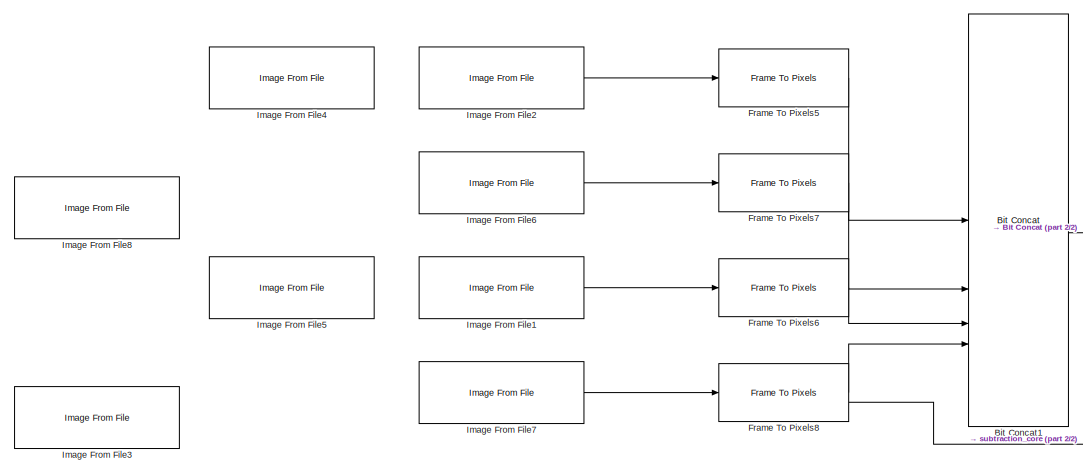
[diagram: root canvas - part 1/2, left side, full height]
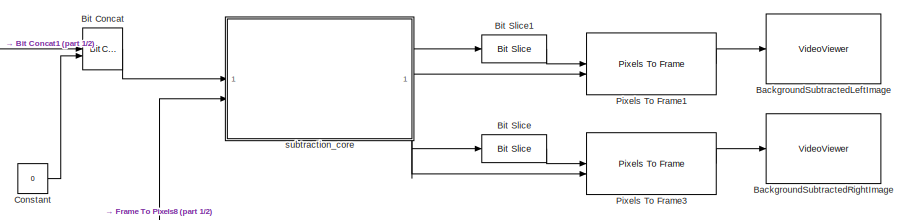
[diagram: root canvas - part 2/2, middle right region]
MODEL slx_2dde3728fc6b
KIND model
CONFIG AbsTol = auto
CONFIG EnableMultiTasking = off
CONFIG FixedStep = auto
CONFIG MaxStep = auto
CONFIG MinStep = auto
CONFIG RelTol = 1e-3
CONFIG SampleTimeConstraint = Unconstrained
CONFIG SolverName = FixedStepDiscrete
CONFIG StartTime = 0.0
CONFIG StopTime = 2
BLOCK [VideoViewer] BackgroundSubtractedLeftImage
  FigPos = [37 919 863 515]
  ScopeSpecificationString = vipscopes.VideoViewerScopeCfg('CurrentConfiguration', extmgr.ConfigurationSet(extmgr.Configuration('Core','General UI',true),extmgr.Configuration('Core','Source UI',true),extmgr.Configuration('Sources','WiredSimulink',true),extmgr.Configuration('Sources','Simulink',false),extmgr.Configuration('Sources','Workspace',false),extmgr.Configuration('Sources','File',false),extmgr.Configuration('Sources','...<+582ch>
  colormapValue = gray(256)
BLOCK [VideoViewer] BackgroundSubtractedRightImage
  FigPos = [913 939 854 533]
  ScopeSpecificationString = vipscopes.VideoViewerScopeCfg('CurrentConfiguration', extmgr.ConfigurationSet(extmgr.Configuration('Core','General UI',true),extmgr.Configuration('Core','Source UI',true),extmgr.Configuration('Sources','WiredSimulink',true),extmgr.Configuration('Sources','Simulink',false),extmgr.Configuration('Sources','Workspace',false),extmgr.Configuration('Sources','File',false),extmgr.Configuration('Sources','...<+583ch>
  colormapValue = gray(256)
BLOCK [Reference] Bit Concat  REF=hdlsllib/Logic and Bit
Operations/Bit Concat
  SourceBlock = hdlsllib/Logic and Bit\nOperations/Bit Concat
  SourceType = Bit Concat
BLOCK [Reference] Bit Concat1  REF=hdlsllib/Logic and Bit
Operations/Bit Concat
  SourceBlock = hdlsllib/Logic and Bit\nOperations/Bit Concat
  SourceType = Bit Concat
BLOCK [Reference] Bit Slice  REF=hdlsllib/Logic and Bit
Operations/Bit Slice
  SourceBlock = hdlsllib/Logic and Bit\nOperations/Bit Slice
  SourceType = Bit Slice
BLOCK [Reference] Bit Slice1  REF=hdlsllib/Logic and Bit
Operations/Bit Slice
  SourceBlock = hdlsllib/Logic and Bit\nOperations/Bit Slice
  SourceType = Bit Slice
BLOCK [Constant] Constant
  OutDataTypeStr = uint32
  SampleTime = -1
  Value = 0
BLOCK [Reference] Frame To Pixels5  REF=visionhdlio/Frame To Pixels
  SourceBlock = visionhdlio/Frame To Pixels
  SourceType = Frame To Pixels
BLOCK [Reference] Frame To Pixels6  REF=visionhdlio/Frame To Pixels
  SourceBlock = visionhdlio/Frame To Pixels
  SourceType = Frame To Pixels
BLOCK [Reference] Frame To Pixels7  REF=visionhdlio/Frame To Pixels
  SourceBlock = visionhdlio/Frame To Pixels
  SourceType = Frame To Pixels
BLOCK [Reference] Frame To Pixels8  REF=visionhdlio/Frame To Pixels
  SourceBlock = visionhdlio/Frame To Pixels
  SourceType = Frame To Pixels
BLOCK [Reference] Image From File1  REF=visionsources/Image From File
  SourceBlock = visionsources/Image From File
  SourceType = Image From File
  Tag = vipblks_nd
BLOCK [Reference] Image From File2  REF=visionsources/Image From File
  SourceBlock = visionsources/Image From File
  SourceType = Image From File
  Tag = vipblks_nd
BLOCK [Reference] Image From File3  REF=visionsources/Image From File
  SourceBlock = visionsources/Image From File
  SourceType = Image From File
  Tag = vipblks_nd
BLOCK [Reference] Image From File4  REF=visionsources/Image From File
  SourceBlock = visionsources/Image From File
  SourceType = Image From File
  Tag = vipblks_nd
BLOCK [Reference] Image From File5  REF=visionsources/Image From File
  SourceBlock = visionsources/Image From File
  SourceType = Image From File
  Tag = vipblks_nd
BLOCK [Reference] Image From File6  REF=visionsources/Image From File
  SourceBlock = visionsources/Image From File
  SourceType = Image From File
  Tag = vipblks_nd
BLOCK [Reference] Image From File7  REF=visionsources/Image From File
  SourceBlock = visionsources/Image From File
  SourceType = Image From File
  Tag = vipblks_nd
BLOCK [Reference] Image From File8  REF=visionsources/Image From File
  SourceBlock = visionsources/Image From File
  SourceType = Image From File
  Tag = vipblks_nd
BLOCK [Reference] Pixels To Frame1  REF=visionhdlio/Pixels To Frame
  SourceBlock = visionhdlio/Pixels To Frame
  SourceType = Pixels To Frame
BLOCK [Reference] Pixels To Frame3  REF=visionhdlio/Pixels To Frame
  SourceBlock = visionhdlio/Pixels To Frame
  SourceType = Pixels To Frame
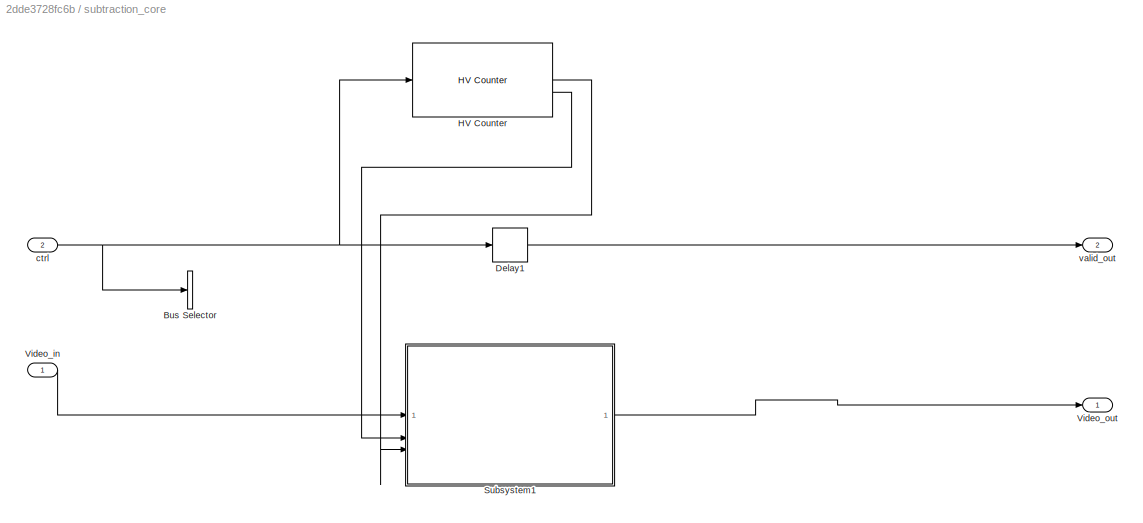
BLOCK [SubSystem] subtraction_core
  TreatAsAtomicUnit = on
BLOCK [BusSelector] subtraction_core/Bus Selector
  OutputSignals = valid
BLOCK [Delay] subtraction_core/Delay1
  InitialCondition = 0
  InputPortMap = u0
BLOCK [Reference] subtraction_core/HV Counter  REF=visionhdlutilities/HV Counter
  SourceBlock = visionhdlutilities/HV Counter
  SourceType = visionhdl.HVCounter
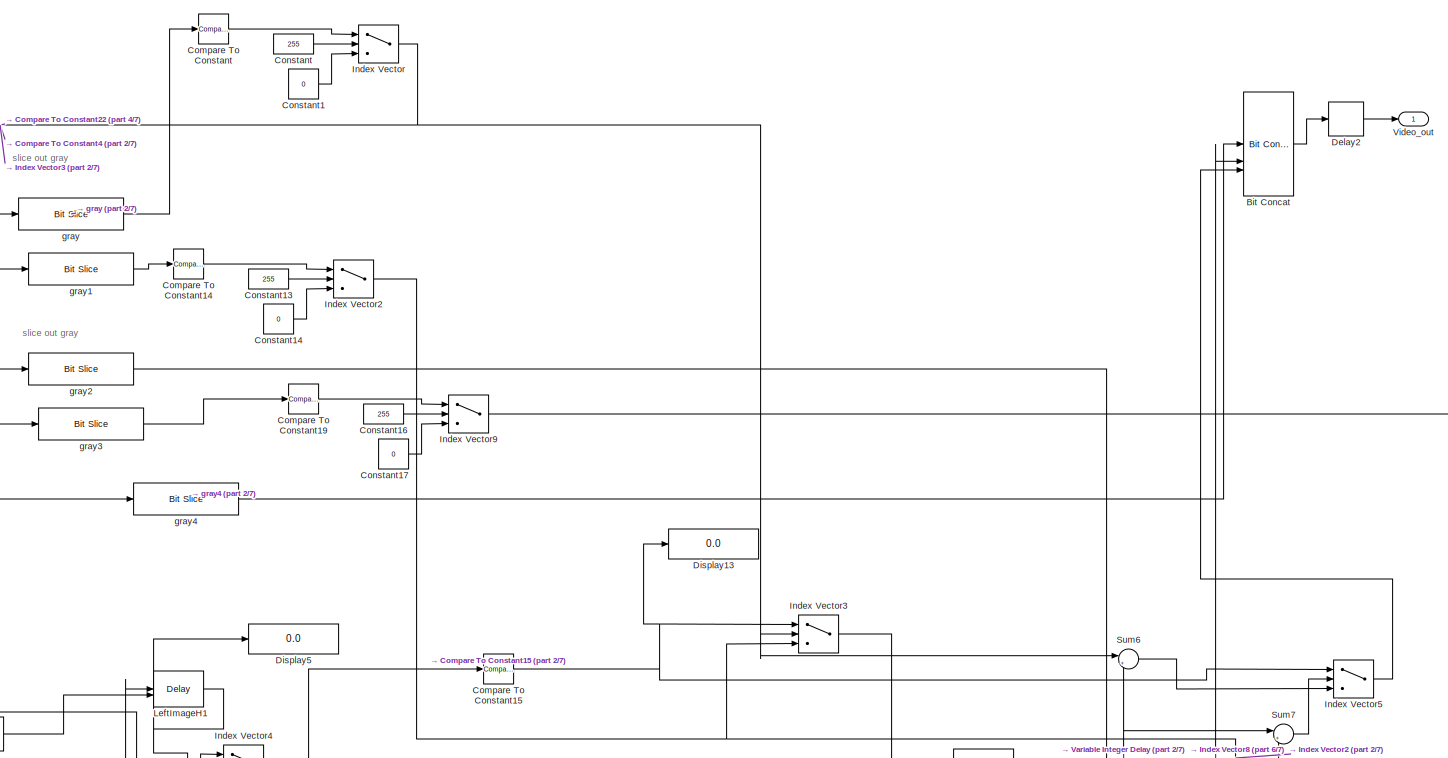
[diagram: subtraction_core/Subsystem1 - part 1/7, top center region]
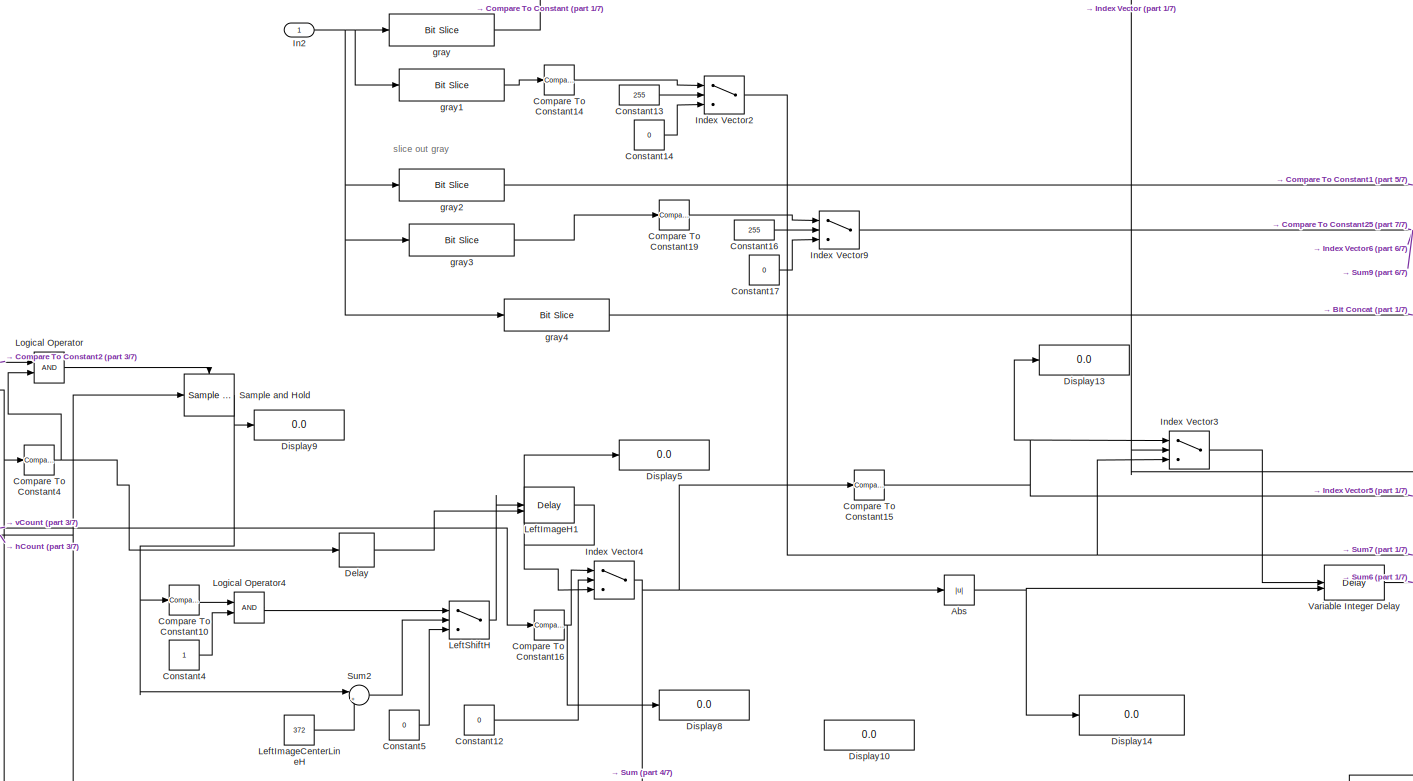
[diagram: subtraction_core/Subsystem1 - part 2/7, top left region]
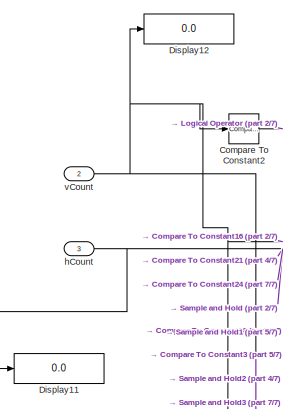
[diagram: subtraction_core/Subsystem1 - part 3/7, top left region]
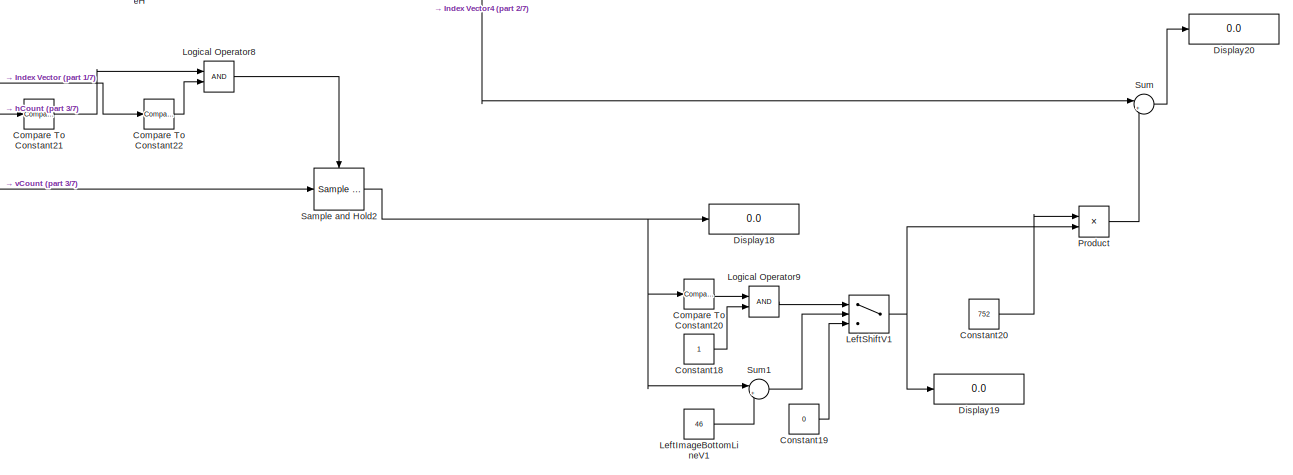
[diagram: subtraction_core/Subsystem1 - part 4/7, middle left region]
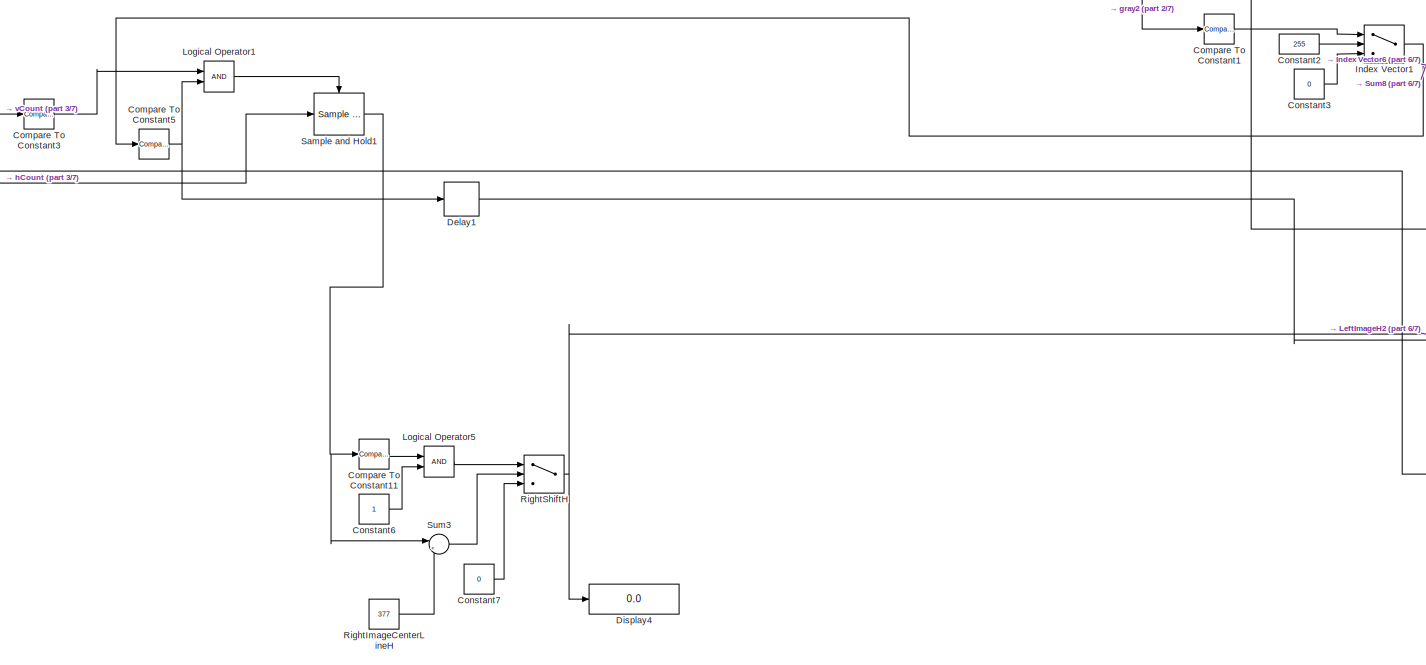
[diagram: subtraction_core/Subsystem1 - part 5/7, bottom center region]
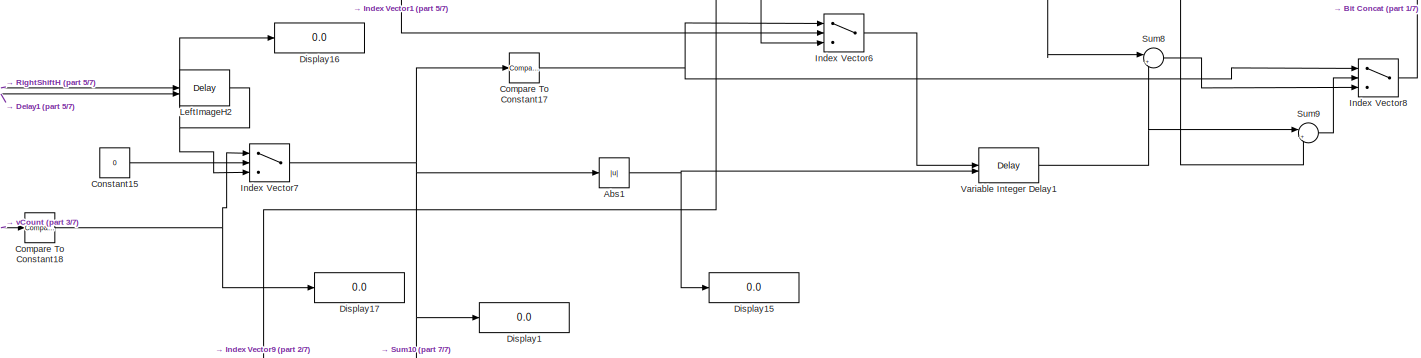
[diagram: subtraction_core/Subsystem1 - part 6/7, bottom right region]
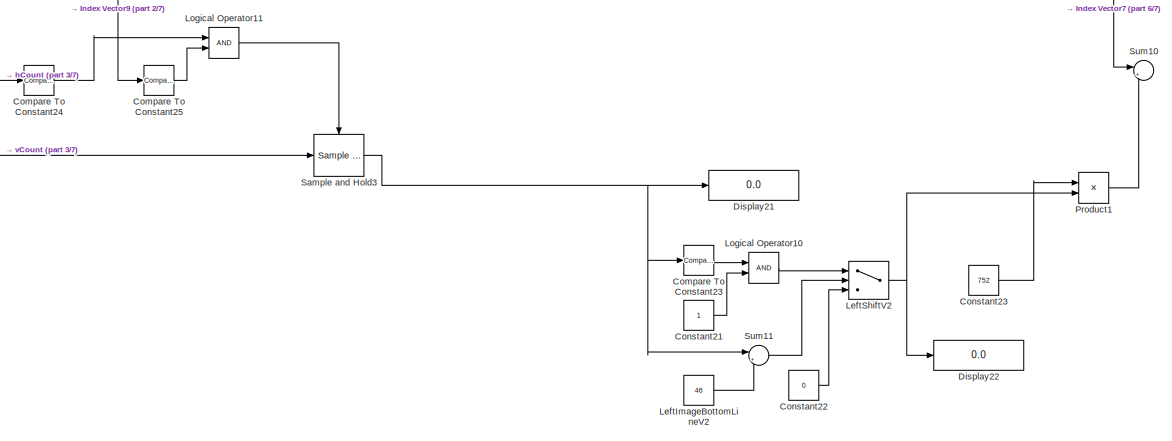
[diagram: subtraction_core/Subsystem1 - part 7/7, bottom right region]
BLOCK [SubSystem] subtraction_core/Subsystem1
BLOCK [Abs] subtraction_core/Subsystem1/Abs
  SaturateOnIntegerOverflow = off
BLOCK [Abs] subtraction_core/Subsystem1/Abs1
  SaturateOnIntegerOverflow = off
BLOCK [Reference] subtraction_core/Subsystem1/Bit Concat  REF=hdlsllib/Logic and Bit
Operations/Bit Concat
  SourceBlock = hdlsllib/Logic and Bit\nOperations/Bit Concat
  SourceType = Bit Concat
BLOCK [Reference] subtraction_core/Subsystem1/Compare To Constant  REF=simulink/Logic and Bit
Operations/Compare
To Constant
  SourceBlock = simulink/Logic and Bit\nOperations/Compare\nTo Constant
  SourceType = Compare To Constant
BLOCK [Reference] subtraction_core/Subsystem1/Compare To Constant1  REF=simulink/Logic and Bit
Operations/Compare
To Constant
  SourceBlock = simulink/Logic and Bit\nOperations/Compare\nTo Constant
  SourceType = Compare To Constant
BLOCK [Reference] subtraction_core/Subsystem1/Compare To Constant10  REF=simulink/Logic and Bit
Operations/Compare
To Constant
  SourceBlock = simulink/Logic and Bit\nOperations/Compare\nTo Constant
  SourceType = Compare To Constant
BLOCK [Reference] subtraction_core/Subsystem1/Compare To Constant11  REF=simulink/Logic and Bit
Operations/Compare
To Constant
  SourceBlock = simulink/Logic and Bit\nOperations/Compare\nTo Constant
  SourceType = Compare To Constant
BLOCK [Reference] subtraction_core/Subsystem1/Compare To Constant14  REF=simulink/Logic and Bit
Operations/Compare
To Constant
  SourceBlock = simulink/Logic and Bit\nOperations/Compare\nTo Constant
  SourceType = Compare To Constant
BLOCK [Reference] subtraction_core/Subsystem1/Compare To Constant15  REF=simulink/Logic and Bit
Operations/Compare
To Constant
  SourceBlock = simulink/Logic and Bit\nOperations/Compare\nTo Constant
  SourceType = Compare To Constant
BLOCK [Reference] subtraction_core/Subsystem1/Compare To Constant16  REF=simulink/Logic and Bit
Operations/Compare
To Constant
  SourceBlock = simulink/Logic and Bit\nOperations/Compare\nTo Constant
  SourceType = Compare To Constant
BLOCK [Reference] subtraction_core/Subsystem1/Compare To Constant17  REF=simulink/Logic and Bit
Operations/Compare
To Constant
  SourceBlock = simulink/Logic and Bit\nOperations/Compare\nTo Constant
  SourceType = Compare To Constant
BLOCK [Reference] subtraction_core/Subsystem1/Compare To Constant18  REF=simulink/Logic and Bit
Operations/Compare
To Constant
  SourceBlock = simulink/Logic and Bit\nOperations/Compare\nTo Constant
  SourceType = Compare To Constant
BLOCK [Reference] subtraction_core/Subsystem1/Compare To Constant19  REF=simulink/Logic and Bit
Operations/Compare
To Constant
  SourceBlock = simulink/Logic and Bit\nOperations/Compare\nTo Constant
  SourceType = Compare To Constant
BLOCK [Reference] subtraction_core/Subsystem1/Compare To Constant2  REF=simulink/Logic and Bit
Operations/Compare
To Constant
  SourceBlock = simulink/Logic and Bit\nOperations/Compare\nTo Constant
  SourceType = Compare To Constant
BLOCK [Reference] subtraction_core/Subsystem1/Compare To Constant20  REF=simulink/Logic and Bit
Operations/Compare
To Constant
  SourceBlock = simulink/Logic and Bit\nOperations/Compare\nTo Constant
  SourceType = Compare To Constant
BLOCK [Reference] subtraction_core/Subsystem1/Compare To Constant21  REF=simulink/Logic and Bit
Operations/Compare
To Constant
  SourceBlock = simulink/Logic and Bit\nOperations/Compare\nTo Constant
  SourceType = Compare To Constant
BLOCK [Reference] subtraction_core/Subsystem1/Compare To Constant22  REF=simulink/Logic and Bit
Operations/Compare
To Constant
  SourceBlock = simulink/Logic and Bit\nOperations/Compare\nTo Constant
  SourceType = Compare To Constant
BLOCK [Reference] subtraction_core/Subsystem1/Compare To Constant23  REF=simulink/Logic and Bit
Operations/Compare
To Constant
  SourceBlock = simulink/Logic and Bit\nOperations/Compare\nTo Constant
  SourceType = Compare To Constant
BLOCK [Reference] subtraction_core/Subsystem1/Compare To Constant24  REF=simulink/Logic and Bit
Operations/Compare
To Constant
  SourceBlock = simulink/Logic and Bit\nOperations/Compare\nTo Constant
  SourceType = Compare To Constant
BLOCK [Reference] subtraction_core/Subsystem1/Compare To Constant25  REF=simulink/Logic and Bit
Operations/Compare
To Constant
  SourceBlock = simulink/Logic and Bit\nOperations/Compare\nTo Constant
  SourceType = Compare To Constant
BLOCK [Reference] subtraction_core/Subsystem1/Compare To Constant3  REF=simulink/Logic and Bit
Operations/Compare
To Constant
  SourceBlock = simulink/Logic and Bit\nOperations/Compare\nTo Constant
  SourceType = Compare To Constant
BLOCK [Reference] subtraction_core/Subsystem1/Compare To Constant4  REF=simulink/Logic and Bit
Operations/Compare
To Constant
  SourceBlock = simulink/Logic and Bit\nOperations/Compare\nTo Constant
  SourceType = Compare To Constant
BLOCK [Reference] subtraction_core/Subsystem1/Compare To Constant5  REF=simulink/Logic and Bit
Operations/Compare
To Constant
  SourceBlock = simulink/Logic and Bit\nOperations/Compare\nTo Constant
  SourceType = Compare To Constant
BLOCK [Constant] subtraction_core/Subsystem1/Constant
  OutDataTypeStr = uint8
  Value = 255
BLOCK [Constant] subtraction_core/Subsystem1/Constant1
  OutDataTypeStr = int8
  Value = 0
BLOCK [Constant] subtraction_core/Subsystem1/Constant12
  OutDataTypeStr = int8
  Value = 0
BLOCK [Constant] subtraction_core/Subsystem1/Constant13
  OutDataTypeStr = uint8
  Value = 255
BLOCK [Constant] subtraction_core/Subsystem1/Constant14
  OutDataTypeStr = int8
  Value = 0
BLOCK [Constant] subtraction_core/Subsystem1/Constant15
  OutDataTypeStr = int8
  Value = 0
BLOCK [Constant] subtraction_core/Subsystem1/Constant16
  OutDataTypeStr = uint8
  Value = 255
BLOCK [Constant] subtraction_core/Subsystem1/Constant17
  OutDataTypeStr = int8
  Value = 0
BLOCK [Constant] subtraction_core/Subsystem1/Constant18
BLOCK [Constant] subtraction_core/Subsystem1/Constant19
  OutDataTypeStr = int8
  Value = 0
BLOCK [Constant] subtraction_core/Subsystem1/Constant2
  OutDataTypeStr = uint8
  Value = 255
BLOCK [Constant] subtraction_core/Subsystem1/Constant20
  Value = 752
BLOCK [Constant] subtraction_core/Subsystem1/Constant21
BLOCK [Constant] subtraction_core/Subsystem1/Constant22
  OutDataTypeStr = int8
  Value = 0
BLOCK [Constant] subtraction_core/Subsystem1/Constant23
  Value = 752
BLOCK [Constant] subtraction_core/Subsystem1/Constant3
  OutDataTypeStr = int8
  Value = 0
BLOCK [Constant] subtraction_core/Subsystem1/Constant4
BLOCK [Constant] subtraction_core/Subsystem1/Constant5
  OutDataTypeStr = int8
  Value = 0
BLOCK [Constant] subtraction_core/Subsystem1/Constant6
BLOCK [Constant] subtraction_core/Subsystem1/Constant7
  OutDataTypeStr = int8
  Value = 0
BLOCK [Delay] subtraction_core/Subsystem1/Delay
  DelayLength = 1
  InitialCondition = 0
  InputPortMap = u0
BLOCK [Delay] subtraction_core/Subsystem1/Delay1
  DelayLength = 1
  InitialCondition = 0
  InputPortMap = u0
BLOCK [Delay] subtraction_core/Subsystem1/Delay2
  InitialCondition = 0
  InputPortMap = u0
BLOCK [Display] subtraction_core/Subsystem1/Display1
  Decimation = 1
BLOCK [Display] subtraction_core/Subsystem1/Display10
  Decimation = 1
BLOCK [Display] subtraction_core/Subsystem1/Display11
  Decimation = 1
BLOCK [Display] subtraction_core/Subsystem1/Display12
  Decimation = 1
BLOCK [Display] subtraction_core/Subsystem1/Display13
  Decimation = 1
BLOCK [Display] subtraction_core/Subsystem1/Display14
  Decimation = 1
  Format = long
BLOCK [Display] subtraction_core/Subsystem1/Display15
  Decimation = 1
BLOCK [Display] subtraction_core/Subsystem1/Display16
  Decimation = 1
BLOCK [Display] subtraction_core/Subsystem1/Display17
  Decimation = 1
BLOCK [Display] subtraction_core/Subsystem1/Display18
  Decimation = 1
BLOCK [Display] subtraction_core/Subsystem1/Display19
  Decimation = 1
BLOCK [Display] subtraction_core/Subsystem1/Display20
  Decimation = 1
BLOCK [Display] subtraction_core/Subsystem1/Display21
  Decimation = 1
BLOCK [Display] subtraction_core/Subsystem1/Display22
  Decimation = 1
BLOCK [Display] subtraction_core/Subsystem1/Display4
  Decimation = 1
BLOCK [Display] subtraction_core/Subsystem1/Display5
  Decimation = 1
BLOCK [Display] subtraction_core/Subsystem1/Display8
  Decimation = 1
BLOCK [Display] subtraction_core/Subsystem1/Display9
  Decimation = 1
BLOCK [Inport] subtraction_core/Subsystem1/In2
BLOCK [MultiPortSwitch] subtraction_core/Subsystem1/Index Vector
  DataPortOrder = Zero-based contiguous
  InputSameDT = off
  Inputs = 2
  SaturateOnIntegerOverflow = off
  zeroidx = on
BLOCK [MultiPortSwitch] subtraction_core/Subsystem1/Index Vector1
  DataPortOrder = Zero-based contiguous
  InputSameDT = off
  Inputs = 2
  SaturateOnIntegerOverflow = off
  zeroidx = on
BLOCK [MultiPortSwitch] subtraction_core/Subsystem1/Index Vector2
  DataPortOrder = Zero-based contiguous
  InputSameDT = off
  Inputs = 2
  SaturateOnIntegerOverflow = off
  zeroidx = on
BLOCK [MultiPortSwitch] subtraction_core/Subsystem1/Index Vector3
  DataPortOrder = Zero-based contiguous
  InputSameDT = off
  Inputs = 2
  SaturateOnIntegerOverflow = off
  zeroidx = on
BLOCK [MultiPortSwitch] subtraction_core/Subsystem1/Index Vector4
  DataPortOrder = Zero-based contiguous
  InputSameDT = off
  Inputs = 2
  SaturateOnIntegerOverflow = off
  zeroidx = on
BLOCK [MultiPortSwitch] subtraction_core/Subsystem1/Index Vector5
  DataPortOrder = Zero-based contiguous
  InputSameDT = off
  Inputs = 2
  SaturateOnIntegerOverflow = off
  zeroidx = on
BLOCK [MultiPortSwitch] subtraction_core/Subsystem1/Index Vector6
  DataPortOrder = Zero-based contiguous
  InputSameDT = off
  Inputs = 2
  SaturateOnIntegerOverflow = off
  zeroidx = on
BLOCK [MultiPortSwitch] subtraction_core/Subsystem1/Index Vector7
  DataPortOrder = Zero-based contiguous
  InputSameDT = off
  Inputs = 2
  SaturateOnIntegerOverflow = off
  zeroidx = on
BLOCK [MultiPortSwitch] subtraction_core/Subsystem1/Index Vector8
  DataPortOrder = Zero-based contiguous
  InputSameDT = off
  Inputs = 2
  SaturateOnIntegerOverflow = off
  zeroidx = on
BLOCK [MultiPortSwitch] subtraction_core/Subsystem1/Index Vector9
  DataPortOrder = Zero-based contiguous
  InputSameDT = off
  Inputs = 2
  SaturateOnIntegerOverflow = off
  zeroidx = on
BLOCK [Constant] subtraction_core/Subsystem1/LeftImageBottomLineV1
  Value = 46
BLOCK [Constant] subtraction_core/Subsystem1/LeftImageBottomLineV2
  Value = 46
BLOCK [Constant] subtraction_core/Subsystem1/LeftImageCenterLineH
  Value = 372
BLOCK [Delay] subtraction_core/Subsystem1/LeftImageH1
  DelayLength = 1
  InputPortMap = u0,e6
  ShowEnablePort = on
BLOCK [Delay] subtraction_core/Subsystem1/LeftImageH2
  DelayLength = 1
  InputPortMap = u0,e6
  ShowEnablePort = on
BLOCK [MultiPortSwitch] subtraction_core/Subsystem1/LeftShiftH
  DataPortOrder = Zero-based contiguous
  InputSameDT = off
  Inputs = 2
  SaturateOnIntegerOverflow = off
  zeroidx = on
BLOCK [MultiPortSwitch] subtraction_core/Subsystem1/LeftShiftV1
  DataPortOrder = Zero-based contiguous
  InputSameDT = off
  Inputs = 2
  SaturateOnIntegerOverflow = off
  zeroidx = on
BLOCK [MultiPortSwitch] subtraction_core/Subsystem1/LeftShiftV2
  DataPortOrder = Zero-based contiguous
  InputSameDT = off
  Inputs = 2
  SaturateOnIntegerOverflow = off
  zeroidx = on
BLOCK [Logic] subtraction_core/Subsystem1/Logical Operator
  AllPortsSameDT = off
  OutDataTypeStr = boolean
BLOCK [Logic] subtraction_core/Subsystem1/Logical Operator1
  AllPortsSameDT = off
  OutDataTypeStr = boolean
BLOCK [Logic] subtraction_core/Subsystem1/Logical Operator10
  AllPortsSameDT = off
  OutDataTypeStr = boolean
BLOCK [Logic] subtraction_core/Subsystem1/Logical Operator11
  AllPortsSameDT = off
  OutDataTypeStr = boolean
BLOCK [Logic] subtraction_core/Subsystem1/Logical Operator4
  AllPortsSameDT = off
  OutDataTypeStr = boolean
BLOCK [Logic] subtraction_core/Subsystem1/Logical Operator5
  AllPortsSameDT = off
  OutDataTypeStr = boolean
BLOCK [Logic] subtraction_core/Subsystem1/Logical Operator8
  AllPortsSameDT = off
  OutDataTypeStr = boolean
BLOCK [Logic] subtraction_core/Subsystem1/Logical Operator9
  AllPortsSameDT = off
  OutDataTypeStr = boolean
BLOCK [Product] subtraction_core/Subsystem1/Product
BLOCK [Product] subtraction_core/Subsystem1/Product1
BLOCK [Constant] subtraction_core/Subsystem1/RightImageCenterLineH
  Value = 377
BLOCK [MultiPortSwitch] subtraction_core/Subsystem1/RightShiftH
  DataPortOrder = Zero-based contiguous
  InputSameDT = off
  Inputs = 2
  SaturateOnIntegerOverflow = off
  zeroidx = on
BLOCK [Reference] subtraction_core/Subsystem1/Sample and Hold  REF=dspsigops/Sample
and Hold
  SourceBlock = dspsigops/Sample\nand Hold
  SourceType = Sample and Hold
BLOCK [Reference] subtraction_core/Subsystem1/Sample and Hold1  REF=dspsigops/Sample
and Hold
  SourceBlock = dspsigops/Sample\nand Hold
  SourceType = Sample and Hold
BLOCK [Reference] subtraction_core/Subsystem1/Sample and Hold2  REF=dspsigops/Sample
and Hold
  SourceBlock = dspsigops/Sample\nand Hold
  SourceType = Sample and Hold
BLOCK [Reference] subtraction_core/Subsystem1/Sample and Hold3  REF=dspsigops/Sample
and Hold
  SourceBlock = dspsigops/Sample\nand Hold
  SourceType = Sample and Hold
BLOCK [Sum] subtraction_core/Subsystem1/Sum
  Inputs = |++
BLOCK [Sum] subtraction_core/Subsystem1/Sum1
  Inputs = |+-
  OutDataTypeStr = int8
  SaturateOnIntegerOverflow = on
BLOCK [Sum] subtraction_core/Subsystem1/Sum10
  Inputs = |++
BLOCK [Sum] subtraction_core/Subsystem1/Sum11
  Inputs = |+-
  OutDataTypeStr = int8
  SaturateOnIntegerOverflow = on
BLOCK [Sum] subtraction_core/Subsystem1/Sum2
  Inputs = |+-
  OutDataTypeStr = int8
  SaturateOnIntegerOverflow = on
BLOCK [Sum] subtraction_core/Subsystem1/Sum3
  Inputs = |+-
  OutDataTypeStr = int8
  SaturateOnIntegerOverflow = on
BLOCK [Sum] subtraction_core/Subsystem1/Sum6
  Inputs = |+-
  OutDataTypeStr = uint8
  SaturateOnIntegerOverflow = on
BLOCK [Sum] subtraction_core/Subsystem1/Sum7
  Inputs = |+-
  OutDataTypeStr = uint8
  SaturateOnIntegerOverflow = on
BLOCK [Sum] subtraction_core/Subsystem1/Sum8
  Inputs = |+-
  OutDataTypeStr = uint8
  SaturateOnIntegerOverflow = on
BLOCK [Sum] subtraction_core/Subsystem1/Sum9
  Inputs = |+-
  OutDataTypeStr = uint8
  SaturateOnIntegerOverflow = on
BLOCK [Delay] subtraction_core/Subsystem1/Variable Integer Delay
  DelayLengthSource = Input port
  InputPortMap = u0,p1
BLOCK [Delay] subtraction_core/Subsystem1/Variable Integer Delay1
  DelayLengthSource = Input port
  InputPortMap = u0,p1
BLOCK [Outport] subtraction_core/Subsystem1/Video_out
  InitialOutput = [0]
BLOCK [Reference] subtraction_core/Subsystem1/gray  REF=hdlsllib/Logic and Bit
Operations/Bit Slice
  SourceBlock = hdlsllib/Logic and Bit\nOperations/Bit Slice
  SourceType = Bit Slice
BLOCK [Reference] subtraction_core/Subsystem1/gray1  REF=hdlsllib/Logic and Bit
Operations/Bit Slice
  SourceBlock = hdlsllib/Logic and Bit\nOperations/Bit Slice
  SourceType = Bit Slice
BLOCK [Reference] subtraction_core/Subsystem1/gray2  REF=hdlsllib/Logic and Bit
Operations/Bit Slice
  SourceBlock = hdlsllib/Logic and Bit\nOperations/Bit Slice
  SourceType = Bit Slice
BLOCK [Reference] subtraction_core/Subsystem1/gray3  REF=hdlsllib/Logic and Bit
Operations/Bit Slice
  SourceBlock = hdlsllib/Logic and Bit\nOperations/Bit Slice
  SourceType = Bit Slice
BLOCK [Reference] subtraction_core/Subsystem1/gray4  REF=hdlsllib/Logic and Bit
Operations/Bit Slice
  SourceBlock = hdlsllib/Logic and Bit\nOperations/Bit Slice
  SourceType = Bit Slice
BLOCK [Inport] subtraction_core/Subsystem1/hCount
  Port = 3
BLOCK [Inport] subtraction_core/Subsystem1/vCount
  Port = 2
BLOCK [Inport] subtraction_core/Video_in
BLOCK [Outport] subtraction_core/Video_out
  VectorParamsAs1DForOutWhenUnconnected = off
BLOCK [Inport] subtraction_core/ctrl
  Port = 2
BLOCK [Outport] subtraction_core/valid_out
  Port = 2
  VectorParamsAs1DForOutWhenUnconnected = off
ANNOTATION subtraction_core/Subsystem1: slice out gray
LINE Bit Concat1:1 -> Bit Concat:1
LINE Bit Concat:1 -> subtraction_core:1
LINE Bit Slice1:1 -> Pixels To Frame1:1
LINE Bit Slice:1 -> Pixels To Frame3:1
LINE Constant:1 -> Bit Concat:2
LINE Frame To Pixels5:1 -> Bit Concat1:1
LINE Frame To Pixels6:1 -> Bit Concat1:3
LINE Frame To Pixels7:1 -> Bit Concat1:2
LINE Frame To Pixels8:1 -> Bit Concat1:4
LINE Frame To Pixels8:2 -> subtraction_core:2
LINE Image From File1:1 -> Frame To Pixels6:1
LINE Image From File2:1 -> Frame To Pixels5:1
LINE Image From File6:1 -> Frame To Pixels7:1
LINE Image From File7:1 -> Frame To Pixels8:1
LINE Pixels To Frame1:1 -> BackgroundSubtractedLeftImage:1
LINE Pixels To Frame3:1 -> BackgroundSubtractedRightImage:1
LINE subtraction_core/Delay1:1 -> subtraction_core/valid_out:1
LINE subtraction_core/HV Counter:1 -> subtraction_core/Subsystem1:3
LINE subtraction_core/HV Counter:2 -> subtraction_core/Subsystem1:2
NET subtraction_core/Subsystem1/Abs1:1 -> subtraction_core/Subsystem1/Display15:1, subtraction_core/Subsystem1/Variable Integer Delay1:2
NET subtraction_core/Subsystem1/Abs:1 -> subtraction_core/Subsystem1/Display14:1, subtraction_core/Subsystem1/Variable Integer Delay:2
LINE subtraction_core/Subsystem1/Bit Concat:1 -> subtraction_core/Subsystem1/Delay2:1
LINE subtraction_core/Subsystem1/Compare To Constant10:1 -> subtraction_core/Subsystem1/Logical Operator4:1
LINE subtraction_core/Subsystem1/Compare To Constant11:1 -> subtraction_core/Subsystem1/Logical Operator5:1
LINE subtraction_core/Subsystem1/Compare To Constant14:1 -> subtraction_core/Subsystem1/Index Vector2:1
NET subtraction_core/Subsystem1/Compare To Constant15:1 -> subtraction_core/Subsystem1/Display13:1, subtraction_core/Subsystem1/Index Vector3:1, subtraction_core/Subsystem1/Index Vector5:1
NET subtraction_core/Subsystem1/Compare To Constant16:1 -> subtraction_core/Subsystem1/Display8:1, subtraction_core/Subsystem1/Index Vector4:1
NET subtraction_core/Subsystem1/Compare To Constant17:1 -> subtraction_core/Subsystem1/Index Vector6:1, subtraction_core/Subsystem1/Index Vector8:1
NET subtraction_core/Subsystem1/Compare To Constant18:1 -> subtraction_core/Subsystem1/Display17:1, subtraction_core/Subsystem1/Index Vector7:1
LINE subtraction_core/Subsystem1/Compare To Constant19:1 -> subtraction_core/Subsystem1/Index Vector9:1
LINE subtraction_core/Subsystem1/Compare To Constant1:1 -> subtraction_core/Subsystem1/Index Vector1:1
LINE subtraction_core/Subsystem1/Compare To Constant20:1 -> subtraction_core/Subsystem1/Logical Operator9:1
LINE subtraction_core/Subsystem1/Compare To Constant21:1 -> subtraction_core/Subsystem1/Logical Operator8:1
LINE subtraction_core/Subsystem1/Compare To Constant22:1 -> subtraction_core/Subsystem1/Logical Operator8:2
LINE subtraction_core/Subsystem1/Compare To Constant23:1 -> subtraction_core/Subsystem1/Logical Operator10:1
LINE subtraction_core/Subsystem1/Compare To Constant24:1 -> subtraction_core/Subsystem1/Logical Operator11:1
LINE subtraction_core/Subsystem1/Compare To Constant25:1 -> subtraction_core/Subsystem1/Logical Operator11:2
LINE subtraction_core/Subsystem1/Compare To Constant2:1 -> subtraction_core/Subsystem1/Logical Operator:1
LINE subtraction_core/Subsystem1/Compare To Constant3:1 -> subtraction_core/Subsystem1/Logical Operator1:1
NET subtraction_core/Subsystem1/Compare To Constant4:1 -> subtraction_core/Subsystem1/Delay:1, subtraction_core/Subsystem1/Logical Operator:2
NET subtraction_core/Subsystem1/Compare To Constant5:1 -> subtraction_core/Subsystem1/Delay1:1, subtraction_core/Subsystem1/Logical Operator1:2
LINE subtraction_core/Subsystem1/Compare To Constant:1 -> subtraction_core/Subsystem1/Index Vector:1
LINE subtraction_core/Subsystem1/Constant12:1 -> subtraction_core/Subsystem1/Index Vector4:2
LINE subtraction_core/Subsystem1/Constant13:1 -> subtraction_core/Subsystem1/Index Vector2:2
LINE subtraction_core/Subsystem1/Constant14:1 -> subtraction_core/Subsystem1/Index Vector2:3
LINE subtraction_core/Subsystem1/Constant15:1 -> subtraction_core/Subsystem1/Index Vector7:2
LINE subtraction_core/Subsystem1/Constant16:1 -> subtraction_core/Subsystem1/Index Vector9:2
LINE subtraction_core/Subsystem1/Constant17:1 -> subtraction_core/Subsystem1/Index Vector9:3
LINE subtraction_core/Subsystem1/Constant18:1 -> subtraction_core/Subsystem1/Logical Operator9:2
LINE subtraction_core/Subsystem1/Constant19:1 -> subtraction_core/Subsystem1/LeftShiftV1:3
LINE subtraction_core/Subsystem1/Constant1:1 -> subtraction_core/Subsystem1/Index Vector:3
LINE subtraction_core/Subsystem1/Constant20:1 -> subtraction_core/Subsystem1/Product:1
LINE subtraction_core/Subsystem1/Constant21:1 -> subtraction_core/Subsystem1/Logical Operator10:2
LINE subtraction_core/Subsystem1/Constant22:1 -> subtraction_core/Subsystem1/LeftShiftV2:3
LINE subtraction_core/Subsystem1/Constant23:1 -> subtraction_core/Subsystem1/Product1:1
LINE subtraction_core/Subsystem1/Constant2:1 -> subtraction_core/Subsystem1/Index Vector1:2
LINE subtraction_core/Subsystem1/Constant3:1 -> subtraction_core/Subsystem1/Index Vector1:3
LINE subtraction_core/Subsystem1/Constant4:1 -> subtraction_core/Subsystem1/Logical Operator4:2
LINE subtraction_core/Subsystem1/Constant5:1 -> subtraction_core/Subsystem1/LeftShiftH:3
LINE subtraction_core/Subsystem1/Constant6:1 -> subtraction_core/Subsystem1/Logical Operator5:2
LINE subtraction_core/Subsystem1/Constant7:1 -> subtraction_core/Subsystem1/RightShiftH:3
LINE subtraction_core/Subsystem1/Constant:1 -> subtraction_core/Subsystem1/Index Vector:2
LINE subtraction_core/Subsystem1/Delay1:1 -> subtraction_core/Subsystem1/LeftImageH2:2
LINE subtraction_core/Subsystem1/Delay2:1 -> subtraction_core/Subsystem1/Video_out:1
LINE subtraction_core/Subsystem1/Delay:1 -> subtraction_core/Subsystem1/LeftImageH1:2
NET subtraction_core/Subsystem1/In2:1 -> subtraction_core/Subsystem1/gray1:1, subtraction_core/Subsystem1/gray2:1, subtraction_core/Subsystem1/gray3:1, subtraction_core/Subsystem1/gray4:1, subtraction_core/Subsystem1/gray:1
NET subtraction_core/Subsystem1/Index Vector1:1 -> subtraction_core/Subsystem1/Compare To Constant5:1, subtraction_core/Subsystem1/Index Vector6:2, subtraction_core/Subsystem1/Sum8:1
NET subtraction_core/Subsystem1/Index Vector2:1 -> subtraction_core/Subsystem1/Index Vector3:3, subtraction_core/Subsystem1/Sum7:2
LINE subtraction_core/Subsystem1/Index Vector3:1 -> subtraction_core/Subsystem1/Variable Integer Delay:1
NET subtraction_core/Subsystem1/Index Vector4:1 -> subtraction_core/Subsystem1/Abs:1, subtraction_core/Subsystem1/Compare To Constant15:1, subtraction_core/Subsystem1/Sum:1
LINE subtraction_core/Subsystem1/Index Vector5:1 -> subtraction_core/Subsystem1/Bit Concat:3
LINE subtraction_core/Subsystem1/Index Vector6:1 -> subtraction_core/Subsystem1/Variable Integer Delay1:1
NET subtraction_core/Subsystem1/Index Vector7:1 -> subtraction_core/Subsystem1/Abs1:1, subtraction_core/Subsystem1/Compare To Constant17:1, subtraction_core/Subsystem1/Display1:1, subtraction_core/Subsystem1/Sum10:1
LINE subtraction_core/Subsystem1/Index Vector8:1 -> subtraction_core/Subsystem1/Bit Concat:2
NET subtraction_core/Subsystem1/Index Vector9:1 -> subtraction_core/Subsystem1/Compare To Constant25:1, subtraction_core/Subsystem1/Index Vector6:3, subtraction_core/Subsystem1/Sum9:2
NET subtraction_core/Subsystem1/Index Vector:1 -> subtraction_core/Subsystem1/Compare To Constant22:1, subtraction_core/Subsystem1/Compare To Constant4:1, subtraction_core/Subsystem1/Index Vector3:2, subtraction_core/Subsystem1/Sum6:1
LINE subtraction_core/Subsystem1/LeftImageBottomLineV1:1 -> subtraction_core/Subsystem1/Sum1:2
LINE subtraction_core/Subsystem1/LeftImageBottomLineV2:1 -> subtraction_core/Subsystem1/Sum11:2
LINE subtraction_core/Subsystem1/LeftImageCenterLineH:1 -> subtraction_core/Subsystem1/Sum2:2
NET subtraction_core/Subsystem1/LeftImageH1:1 -> subtraction_core/Subsystem1/Display5:1, subtraction_core/Subsystem1/Index Vector4:3
NET subtraction_core/Subsystem1/LeftImageH2:1 -> subtraction_core/Subsystem1/Display16:1, subtraction_core/Subsystem1/Index Vector7:3
LINE subtraction_core/Subsystem1/LeftShiftH:1 -> subtraction_core/Subsystem1/LeftImageH1:1
NET subtraction_core/Subsystem1/LeftShiftV1:1 -> subtraction_core/Subsystem1/Display19:1, subtraction_core/Subsystem1/Product:2
NET subtraction_core/Subsystem1/LeftShiftV2:1 -> subtraction_core/Subsystem1/Display22:1, subtraction_core/Subsystem1/Product1:2
LINE subtraction_core/Subsystem1/Logical Operator10:1 -> subtraction_core/Subsystem1/LeftShiftV2:1
LINE subtraction_core/Subsystem1/Logical Operator11:1 -> subtraction_core/Subsystem1/Sample and Hold3:trigger
LINE subtraction_core/Subsystem1/Logical Operator1:1 -> subtraction_core/Subsystem1/Sample and Hold1:trigger
LINE subtraction_core/Subsystem1/Logical Operator4:1 -> subtraction_core/Subsystem1/LeftShiftH:1
LINE subtraction_core/Subsystem1/Logical Operator5:1 -> subtraction_core/Subsystem1/RightShiftH:1
LINE subtraction_core/Subsystem1/Logical Operator8:1 -> subtraction_core/Subsystem1/Sample and Hold2:trigger
LINE subtraction_core/Subsystem1/Logical Operator9:1 -> subtraction_core/Subsystem1/LeftShiftV1:1
LINE subtraction_core/Subsystem1/Logical Operator:1 -> subtraction_core/Subsystem1/Sample and Hold:trigger
LINE subtraction_core/Subsystem1/Product1:1 -> subtraction_core/Subsystem1/Sum10:2
LINE subtraction_core/Subsystem1/Product:1 -> subtraction_core/Subsystem1/Sum:2
LINE subtraction_core/Subsystem1/RightImageCenterLineH:1 -> subtraction_core/Subsystem1/Sum3:2
NET subtraction_core/Subsystem1/RightShiftH:1 -> subtraction_core/Subsystem1/Display4:1, subtraction_core/Subsystem1/LeftImageH2:1
NET subtraction_core/Subsystem1/Sample and Hold1:1 -> subtraction_core/Subsystem1/Compare To Constant11:1, subtraction_core/Subsystem1/Sum3:1
NET subtraction_core/Subsystem1/Sample and Hold2:1 -> subtraction_core/Subsystem1/Compare To Constant20:1, subtraction_core/Subsystem1/Display18:1, subtraction_core/Subsystem1/Sum1:1
NET subtraction_core/Subsystem1/Sample and Hold3:1 -> subtraction_core/Subsystem1/Compare To Constant23:1, subtraction_core/Subsystem1/Display21:1, subtraction_core/Subsystem1/Sum11:1
NET subtraction_core/Subsystem1/Sample and Hold:1 -> subtraction_core/Subsystem1/Compare To Constant10:1, subtraction_core/Subsystem1/Display9:1, subtraction_core/Subsystem1/Sum2:1
LINE subtraction_core/Subsystem1/Sum11:1 -> subtraction_core/Subsystem1/LeftShiftV2:2
LINE subtraction_core/Subsystem1/Sum1:1 -> subtraction_core/Subsystem1/LeftShiftV1:2
LINE subtraction_core/Subsystem1/Sum2:1 -> subtraction_core/Subsystem1/LeftShiftH:2
LINE subtraction_core/Subsystem1/Sum3:1 -> subtraction_core/Subsystem1/RightShiftH:2
LINE subtraction_core/Subsystem1/Sum6:1 -> subtraction_core/Subsystem1/Index Vector5:3
LINE subtraction_core/Subsystem1/Sum7:1 -> subtraction_core/Subsystem1/Index Vector5:2
LINE subtraction_core/Subsystem1/Sum8:1 -> subtraction_core/Subsystem1/Index Vector8:3
LINE subtraction_core/Subsystem1/Sum9:1 -> subtraction_core/Subsystem1/Index Vector8:2
LINE subtraction_core/Subsystem1/Sum:1 -> subtraction_core/Subsystem1/Display20:1
NET subtraction_core/Subsystem1/Variable Integer Delay1:1 -> subtraction_core/Subsystem1/Sum8:2, subtraction_core/Subsystem1/Sum9:1
NET subtraction_core/Subsystem1/Variable Integer Delay:1 -> subtraction_core/Subsystem1/Sum6:2, subtraction_core/Subsystem1/Sum7:1
LINE subtraction_core/Subsystem1/gray1:1 -> subtraction_core/Subsystem1/Compare To Constant14:1
LINE subtraction_core/Subsystem1/gray2:1 -> subtraction_core/Subsystem1/Compare To Constant1:1
LINE subtraction_core/Subsystem1/gray3:1 -> subtraction_core/Subsystem1/Compare To Constant19:1
LINE subtraction_core/Subsystem1/gray4:1 -> subtraction_core/Subsystem1/Bit Concat:1
LINE subtraction_core/Subsystem1/gray:1 -> subtraction_core/Subsystem1/Compare To Constant:1
NET subtraction_core/Subsystem1/hCount:1 -> subtraction_core/Subsystem1/Compare To Constant21:1, subtraction_core/Subsystem1/Compare To Constant24:1, subtraction_core/Subsystem1/Display11:1, subtraction_core/Subsystem1/Sample and Hold1:1, subtraction_core/Subsystem1/Sample and Hold:1
NET subtraction_core/Subsystem1/vCount:1 -> subtraction_core/Subsystem1/Compare To Constant16:1, subtraction_core/Subsystem1/Compare To Constant18:1, subtraction_core/Subsystem1/Compare To Constant2:1, subtraction_core/Subsystem1/Compare To Constant3:1, subtraction_core/Subsystem1/Display12:1, subtraction_core/Subsystem1/Sample and Hold2:1, subtraction_core/Subsystem1/Sample and Hold3:1
LINE subtraction_core/Subsystem1:1 -> subtraction_core/Video_out:1
LINE subtraction_core/Video_in:1 -> subtraction_core/Subsystem1:1
NET subtraction_core/ctrl:1 -> subtraction_core/Bus Selector:1, subtraction_core/Delay1:1, subtraction_core/HV Counter:1
NET subtraction_core:1 -> Bit Slice1:1, Bit Slice:1
NET subtraction_core:2 -> Pixels To Frame1:2, Pixels To Frame3:2
note: NET lines group one-source signal fan-out (src -> all destinations, sorted); 1:1 wires keep LINE
